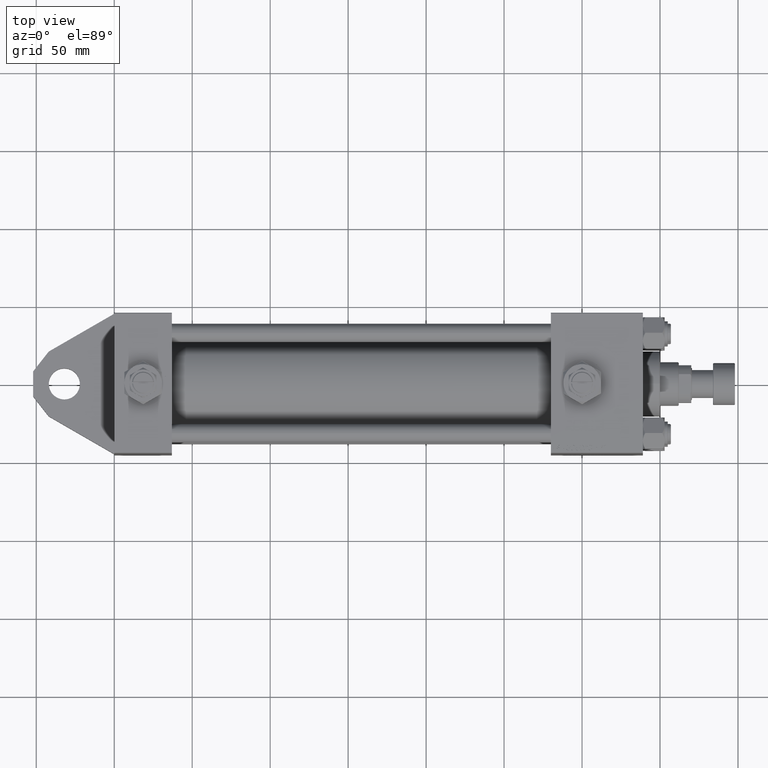
[diagram: clean part render]
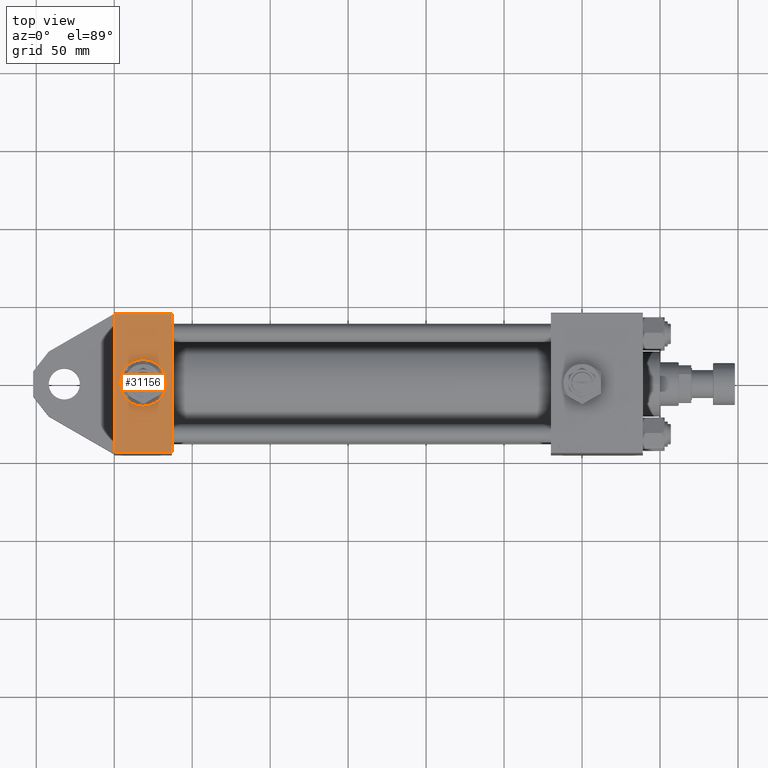
[diagram: same view with one face highlighted and labeled with its STEP entity id]
A machine part, top view. The second image highlights one B-rep face of the part: STEP entity #31156.
In plain terms, the highlighted planar face has unit normal (-0, 0, 1).
Its self-contained STEP definition (entity closure, byte-faithful):
#2153 = CARTESIAN_POINT ( 'NONE',  ( 37.00000000000000000, 44.99999999999998579, 44.50000000000001421 ) ) ;
#2229 = VECTOR ( 'NONE', #10020, 1000.000000000000000 ) ;
#2660 = CARTESIAN_POINT ( 'NONE',  ( 37.00000000000000000, 44.99999999999998579, -44.49999999999998579 ) ) ;
#4151 = EDGE_LOOP ( 'NONE', ( #19251, #32069 ) ) ;
#5705 = ORIENTED_EDGE ( 'NONE', *, *, #35739, .T. ) ;
#6074 = AXIS2_PLACEMENT_3D ( 'NONE', #46603, #27943, #42922 ) ;
#8962 = CARTESIAN_POINT ( 'NONE',  ( 18.50000000000000355, 44.99999999999998579, -15.00000000000000178 ) ) ;
#9480 = VERTEX_POINT ( 'NONE', #24868 ) ;
#9515 = CARTESIAN_POINT ( 'NONE',  ( 18.50000000000000000, 44.99999999999998579, 0.000000000000000000 ) ) ;
#9742 = EDGE_CURVE ( 'NONE', #43615, #42710, #31934, .T. ) ;
#10020 = DIRECTION ( 'NONE',  ( -1.000000000000000000, 0.000000000000000000, 0.000000000000000000 ) ) ;
#13013 = DIRECTION ( 'NONE',  ( 0.000000000000000000, 0.000000000000000000, -1.000000000000000000 ) ) ;
#13620 = FACE_OUTER_BOUND ( 'NONE', #17515, .T. ) ;
#13958 = EDGE_CURVE ( 'NONE', #18816, #30516, #37207, .T. ) ;
#13966 = EDGE_CURVE ( 'NONE', #43615, #9480, #23779, .T. ) ;
#14671 = CARTESIAN_POINT ( 'NONE',  ( 37.00000000000000000, 44.99999999999998579, -44.49999999999995737 ) ) ;
#15538 = ORIENTED_EDGE ( 'NONE', *, *, #13966, .T. ) ;
#16777 = EDGE_CURVE ( 'NONE', #9480, #32186, #37119, .T. ) ;
#17127 = DIRECTION ( 'NONE',  ( 0.000000000000000000, 0.000000000000000000, 1.000000000000000000 ) ) ;
#17515 = EDGE_LOOP ( 'NONE', ( #44339, #5705, #17580, #15538 ) ) ;
#17580 = ORIENTED_EDGE ( 'NONE', *, *, #9742, .F. ) ;
#18816 = VERTEX_POINT ( 'NONE', #8962 ) ;
#19251 = ORIENTED_EDGE ( 'NONE', *, *, #19390, .F. ) ;
#19390 = EDGE_CURVE ( 'NONE', #30516, #18816, #33514, .T. ) ;
#20630 = CARTESIAN_POINT ( 'NONE',  ( 0.000000000000000000, 44.99999999999998579, 45.00000000000001421 ) ) ;
#21228 = DIRECTION ( 'NONE',  ( -0.000000000000000000, 1.000000000000000000, 0.000000000000000000 ) ) ;
#22293 = AXIS2_PLACEMENT_3D ( 'NONE', #9515, #43422, #17127 ) ;
#23779 = LINE ( 'NONE', #2153, #28594 ) ;
#24868 = CARTESIAN_POINT ( 'NONE',  ( 37.00000000000000000, 44.99999999999998579, 44.50000000000001421 ) ) ;
#27943 = DIRECTION ( 'NONE',  ( 0.000000000000000000, 1.000000000000000000, 0.000000000000000000 ) ) ;
#28594 = VECTOR ( 'NONE', #31875, 1000.000000000000000 ) ;
#28612 = PLANE ( 'NONE',  #43757 ) ;
#30516 = VERTEX_POINT ( 'NONE', #31673 ) ;
#31156 = ADVANCED_FACE ( 'NONE', ( #39912, #13620 ), #28612, .T. ) ;
#31445 = DIRECTION ( 'NONE',  ( 0.000000000000000000, 0.000000000000000000, -1.000000000000000000 ) ) ;
#31673 = CARTESIAN_POINT ( 'NONE',  ( 18.50000000000000000, 44.99999999999998579, 15.00000000000000178 ) ) ;
#31875 = DIRECTION ( 'NONE',  ( 1.000000000000000000, 0.000000000000000000, 0.000000000000000000 ) ) ;
#31934 = LINE ( 'NONE', #20630, #38771 ) ;
#32069 = ORIENTED_EDGE ( 'NONE', *, *, #13958, .F. ) ;
#32186 = VERTEX_POINT ( 'NONE', #14671 ) ;
#32532 = DIRECTION ( 'NONE',  ( 0.000000000000000000, -0.000000000000000000, 1.000000000000000000 ) ) ;
#33514 = CIRCLE ( 'NONE', #6074, 15.00000000000000178 ) ;
#35739 = EDGE_CURVE ( 'NONE', #32186, #42710, #43676, .T. ) ;
#37119 = LINE ( 'NONE', #48433, #43597 ) ;
#37207 = CIRCLE ( 'NONE', #22293, 15.00000000000000178 ) ;
#38771 = VECTOR ( 'NONE', #13013, 1000.000000000000000 ) ;
#39912 = FACE_BOUND ( 'NONE', #4151, .T. ) ;
#42710 = VERTEX_POINT ( 'NONE', #48081 ) ;
#42922 = DIRECTION ( 'NONE',  ( 0.000000000000000000, 0.000000000000000000, 1.000000000000000000 ) ) ;
#43422 = DIRECTION ( 'NONE',  ( 0.000000000000000000, 1.000000000000000000, 0.000000000000000000 ) ) ;
#43588 = CARTESIAN_POINT ( 'NONE',  ( 37.00000000000000000, 44.99999999999998579, 45.00000000000001421 ) ) ;
#43597 = VECTOR ( 'NONE', #31445, 1000.000000000000000 ) ;
#43615 = VERTEX_POINT ( 'NONE', #47030 ) ;
#43676 = LINE ( 'NONE', #2660, #2229 ) ;
#43757 = AXIS2_PLACEMENT_3D ( 'NONE', #43588, #21228, #32532 ) ;
#44339 = ORIENTED_EDGE ( 'NONE', *, *, #16777, .T. ) ;
#46603 = CARTESIAN_POINT ( 'NONE',  ( 18.50000000000000000, 44.99999999999998579, 0.000000000000000000 ) ) ;
#47030 = CARTESIAN_POINT ( 'NONE',  ( 0.000000000000000000, 44.99999999999998579, 44.50000000000001421 ) ) ;
#48081 = CARTESIAN_POINT ( 'NONE',  ( 0.000000000000000000, 44.99999999999998579, -44.49999999999995737 ) ) ;
#48433 = CARTESIAN_POINT ( 'NONE',  ( 37.00000000000000000, 44.99999999999998579, 45.00000000000001421 ) ) ;